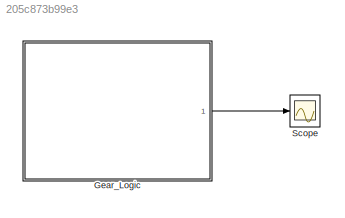
MODEL slx_205c873b99e3
KIND model
CONFIG AbsTol = auto
CONFIG EnableMultiTasking = on
CONFIG FixedStep = 0.01
CONFIG MaxStep = auto
CONFIG MinStep = auto
CONFIG RelTol = 1e-3
CONFIG SampleTimeConstraint = Unconstrained
CONFIG SolverName = FixedStepAuto
CONFIG StartTime = 0.0
CONFIG StopTime = 20
WORKSPACE source: mxarray member
WORKSPACE Var = 0
WORKSPACE downtab = [0 0 0 0 0 0 5 5 5 5 30 30 ... (24 elements, 6x4)]
WORKSPACE downth = [0 5 40 50 90 100]
WORKSPACE uptab = [10 10 15 23 40 40 30 30 30 41 70 70 ... (24 elements, 6x4)]
WORKSPACE upth = [0 25 35 50 90 100]
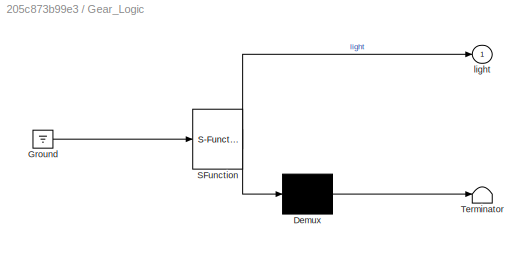
BLOCK [SubSystem] Gear_Logic
  ErrorFcn = Stateflow.Translate.translate
  PermitHierarchicalResolution = ExplicitOnly
  Ports = [0, 1]
  RequestExecContextInheritance = off
  SFBlockType = Chart
  TreatAsAtomicUnit = on
BLOCK [Demux] Gear_Logic/ Demux 
  Outputs = 1
  Ports = [1, 1]
BLOCK [Ground] Gear_Logic/ Ground 
BLOCK [S-Function] Gear_Logic/ SFunction 
  EnableBusSupport = on
  FunctionName = sf_sfun
  PortCounts = [1 2]
  Ports = [1, 2]
  SFcnIsStateOwnerBlock = off
  SFunctionDeploymentMode = off
  Tag = Stateflow S-Function 3
BLOCK [Terminator] Gear_Logic/ Terminator 
BLOCK [Outport] Gear_Logic/light
BLOCK [Scope] Scope
  Floating = off
  NumInputPorts = 1
  Ports = [1]
  ScopeSpecificationString = Simulink.scopes.TimeScopeBlockCfg('CurrentConfiguration', extmgr.ConfigurationSet(extmgr.Configuration('Core','General UI',true),extmgr.Configuration('Core','Source UI',true),extmgr.Configuration('Sources','WiredSimulink',true),extmgr.Configuration('Visuals','Time Domain',true,'SerializedDisplays',{struct('MinYLimReal','-0.125','MaxYLimReal','1.125','YLabelReal','','MinYLimMag','0.00000','MaxYLimM...<+1383ch>
LINE Gear_Logic:1 -> Scope:1
CHART Gear_Logic states=18 transitions=25
  STATE_LABEL 'gear_state\n%on SlowDown: delta = -1;\n%on Cruise: delta = 0;\n%on SpeedUp: delta = 1;\nduring:\nspeed = max(0,min(speed+delta,100));'
  STATE_LABEL 'first\nentry:\ngear=1;'
  STATE_LABEL 'second\nentry:\ngear=2;'
  STATE_LABEL 'third\nentry:\ngear=3;'
  STATE_LABEL 'fourth\nentry:\ngear=4;'
  STATE_LABEL 'UP'
  STATE_LABEL 'UP'
  STATE_LABEL 'UP'
  STATE_LABEL 'DOWN'
  STATE_LABEL 'DOWN'
  STATE_LABEL 'DOWN'
  STATE_LABEL 'first\nentry:\ngear=1;'
  STATE_LABEL 'second\nentry:\ngear=2;'
  STATE_LABEL 'third\nentry:\ngear=3;'
  STATE_LABEL 'fourth\nentry:\ngear=4;'
  STATE_LABEL 'led_state\n'
  STATE_LABEL 'blink_on_gear_change'
  STATE_LABEL 'OFF\nentry:\nlight=0;'
  STATE_LABEL 'ON\nentry:\nlight=1;'
  STATE_LABEL 'after(0.05,sec)'
  STATE_LABEL 'UP || DOWN'
  STATE_LABEL 'blinking'
  STATE_LABEL 'OFF\nentry:\nlight=0;'
  STATE_LABEL 'ON\nentry:\nlight=1;'
  STATE_LABEL 'after(0.05,sec)'
  STATE_LABEL 'after(0.05,sec)'
  STATE_LABEL 'prepare_to_blink'
  STATE_LABEL '[gear < 4]'
  STATE_LABEL '[light == 0 && gear == 4 && speed >= up_th]'
  STATE_LABEL '[gear < 4]'
  STATE_LABEL 'after(0.1,sec)'
  STATE_LABEL 'blink_on_gear_change'
  STATE_LABEL 'OFF\nentry:\nlight=0;'
  STATE_LABEL 'ON\nentry:\nlight=1;'
  STATE_LABEL 'after(0.05,sec)'
  STATE_LABEL 'UP || DOWN'
  STATE_LABEL 'OFF\nentry:\nlight=0;'
  STATE_LABEL 'ON\nentry:\nlight=1;'
  STATE_LABEL 'blinking'
  STATE_LABEL 'OFF\nentry:\nlight=0;'
CHART  states=0 transitions=0
